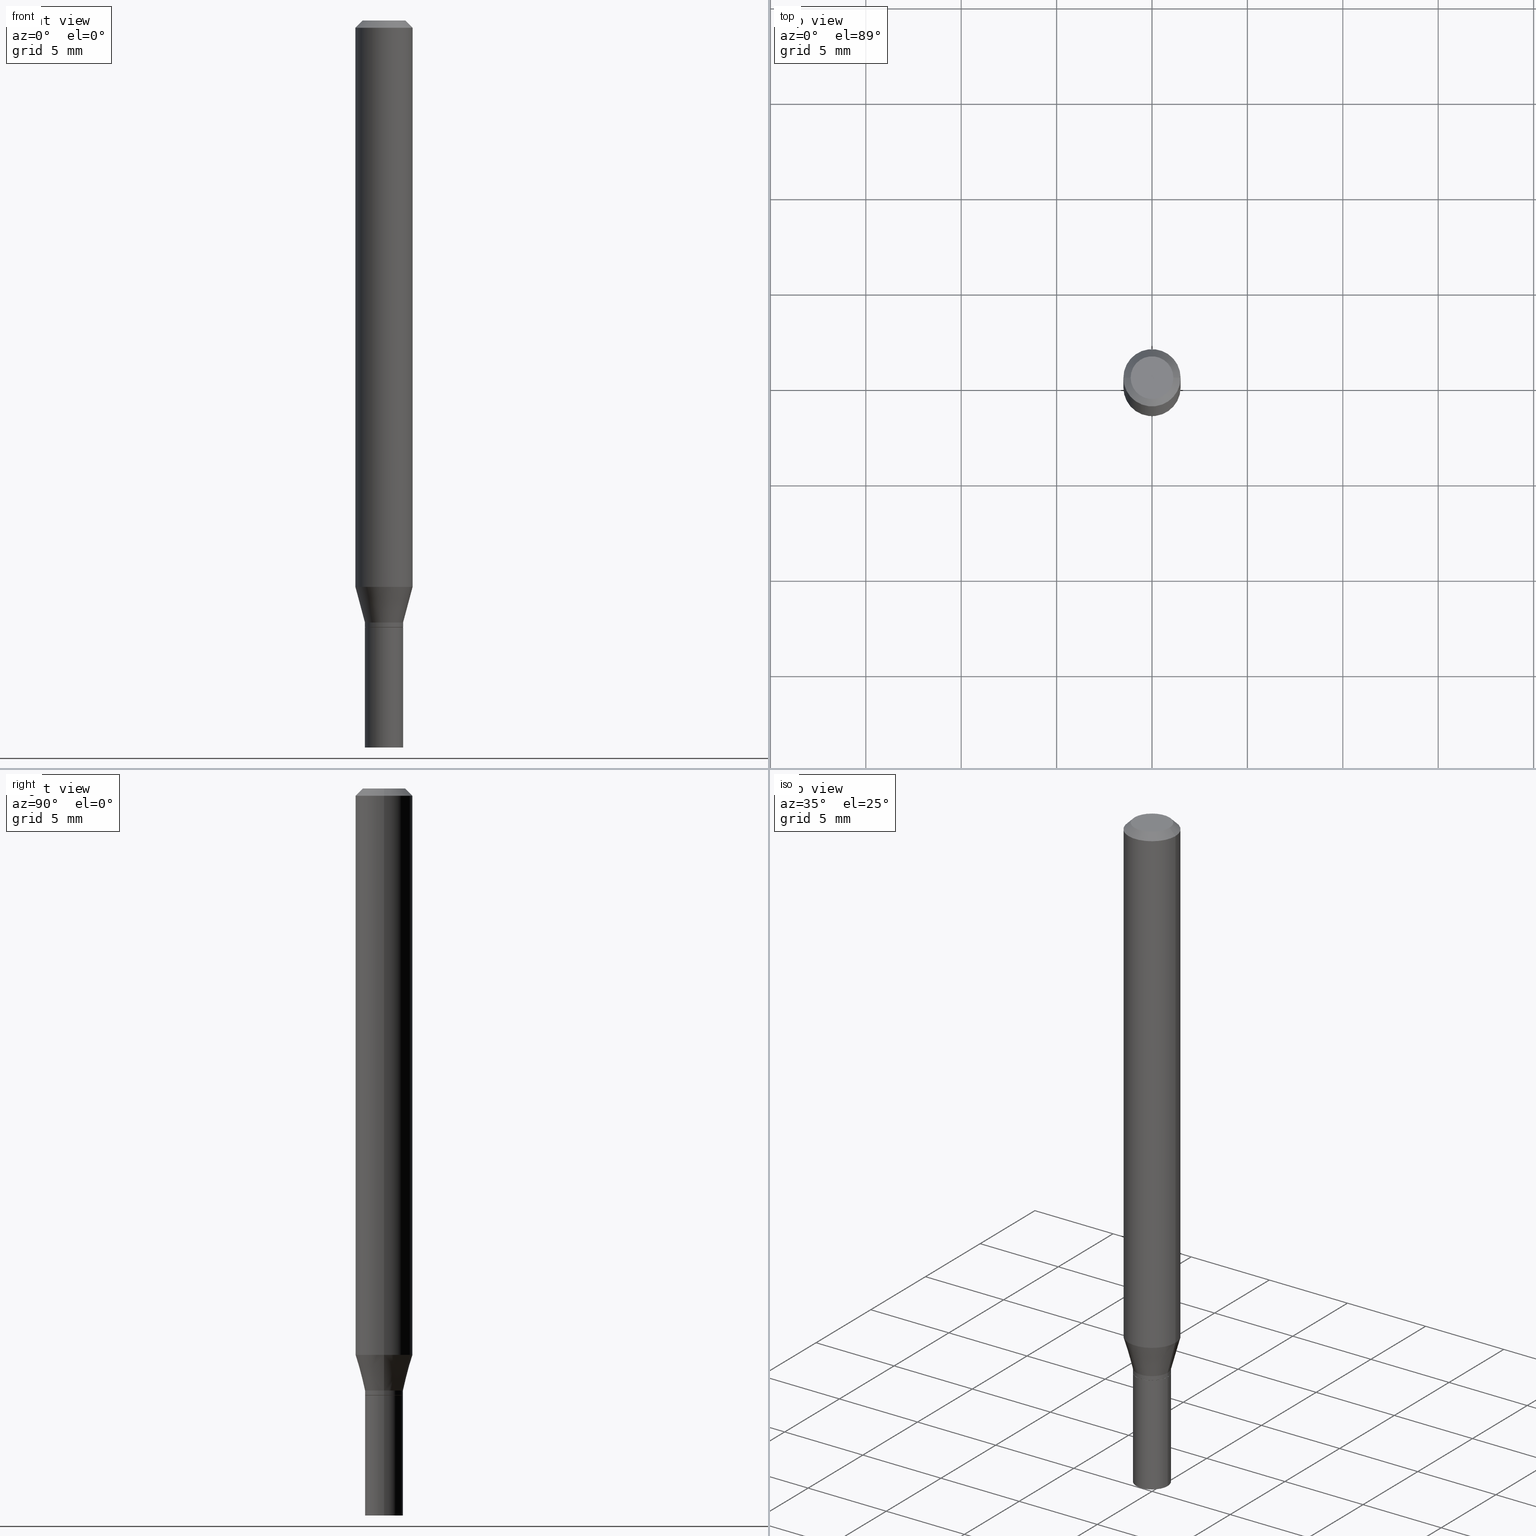
[diagram: canonical four-view strip — front | top / right | iso, engineering-drawing reading convention]
A machine part, canonical four-view strip (front | top / right | iso — engineering-drawing reading convention). The complete STEP part file that produces these views, byte-faithful:
ISO-10303-21;
HEADER;
FILE_DESCRIPTION (( 'STEP AP203' ),
    '1' );
FILE_NAME ('40513.STEP',
    '2024-03-12T19:13:10',
    ( '' ),
    ( '' ),
    'SwSTEP 2.0',
    'SolidWorks 2023',
    '' );
FILE_SCHEMA (( 'CONFIG_CONTROL_DESIGN' ));
ENDSEC;

DATA;
#1 = PERSON_AND_ORGANIZATION_ROLE ( 'creator' ) ;
#2 = EDGE_LOOP ( 'NONE', ( #207, #233, #335, #125 ) ) ;
#3 = COORDINATED_UNIVERSAL_TIME_OFFSET ( 5, 0, .BEHIND. ) ;
#4 = ORIENTED_EDGE ( 'NONE', *, *, #117, .F. ) ;
#5 = APPROVAL_DATE_TIME ( #189, #333 ) ;
#6 = ADVANCED_FACE ( 'NONE', ( #240 ), #300, .T. ) ;
#7 = ORIENTED_EDGE ( 'NONE', *, *, #218, .T. ) ;
#8 = AXIS2_PLACEMENT_3D ( 'NONE', #381, #89, #54 ) ;
#9 = LOCAL_TIME ( 15, 13, 10.00000000000000000, #3 ) ;
#10 = ORIENTED_EDGE ( 'NONE', *, *, #191, .F. ) ;
#11 = VERTEX_POINT ( 'NONE', #271 ) ;
#12 = DIRECTION ( 'NONE',  ( 0.2588190451025215721, 1.565188264969619995E-15, 0.9659258262890679791 ) ) ;
#13 = APPROVAL_ROLE ( '' ) ;
#14 = VECTOR ( 'NONE', #391, 39.37007874015748143 ) ;
#15 =( GEOMETRIC_REPRESENTATION_CONTEXT ( 3 ) GLOBAL_UNCERTAINTY_ASSIGNED_CONTEXT ( ( #57 ) ) GLOBAL_UNIT_ASSIGNED_CONTEXT ( ( #320, #148, #286 ) ) REPRESENTATION_CONTEXT ( 'NONE', 'WORKASPACE' ) );
#16 = CARTESIAN_POINT ( 'NONE',  ( 0.05904999999999999832, -4.492065169680809250E-15, -1.168478599090893244 ) ) ;
#17 = CARTESIAN_POINT ( 'NONE',  ( 3.037272257281939846E-29, -4.336419822843186836E-15, -1.241999999999999993 ) ) ;
#18 = FACE_OUTER_BOUND ( 'NONE', #404, .T. ) ;
#19 = DIRECTION ( 'NONE',  ( 1.000000000000000000, -6.982962677686266711E-15, 0.000000000000000000 ) ) ;
#20 = EDGE_CURVE ( 'NONE', #302, #59, #130, .T. ) ;
#21 = DIRECTION ( 'NONE',  ( 1.000000000000000000, -6.982962677686269077E-15, 0.000000000000000000 ) ) ;
#22 = CARTESIAN_POINT ( 'NONE',  ( -0.03935000000000000303, 2.795985665215994447E-16, -1.935600958015305291E-30 ) ) ;
#23 = AXIS2_PLACEMENT_3D ( 'NONE', #206, #232, #19 ) ;
#24 = DIRECTION ( 'NONE',  ( 0.7071067811865656694, -2.468850131082446387E-15, 0.7071067811865294761 ) ) ;
#25 = DIRECTION ( 'NONE',  ( 1.000000000000000000, -6.982962677686267499E-15, 4.876176775795936353E-29 ) ) ;
#26 = DIRECTION ( 'NONE',  ( -2.445468806185136877E-29, 3.491481338843145188E-15, 1.000000000000000000 ) ) ;
#27 = FACE_OUTER_BOUND ( 'NONE', #403, .T. ) ;
#28 = DIRECTION ( 'NONE',  ( 1.000000000000000000, -6.982962677686266711E-15, 4.876176775795936353E-29 ) ) ;
#29 = CARTESIAN_POINT ( 'NONE',  ( 3.037272257281939846E-29, -4.336419822843186836E-15, -1.241999999999999993 ) ) ;
#30 = LINE ( 'NONE', #281, #163 ) ;
#31 = LOCAL_TIME ( 15, 13, 10.00000000000000000, #463 ) ;
#32 = CARTESIAN_POINT ( 'NONE',  ( 0.03934999999999992670, -4.644368476929151899E-15, -1.251500000000000279 ) ) ;
#33 = CALENDAR_DATE ( 2024, 12, 3 ) ;
#34 = EDGE_CURVE ( 'NONE', #299, #302, #336, .T. ) ;
#35 = DIRECTION ( 'NONE',  ( -2.445468806185136597E-29, 3.491481338843145583E-15, 1.000000000000000000 ) ) ;
#36 = CALENDAR_DATE ( 2024, 12, 3 ) ;
#37 = CARTESIAN_POINT ( 'NONE',  ( 0.000000000000000000, 0.000000000000000000, 0.000000000000000000 ) ) ;
#38 = AXIS2_PLACEMENT_3D ( 'NONE', #69, #176, #106 ) ;
#39 = AXIS2_PLACEMENT_3D ( 'NONE', #449, #94, #202 ) ;
#40 = PERSON_AND_ORGANIZATION ( #443, #315 ) ;
#41 = ORIENTED_EDGE ( 'NONE', *, *, #49, .F. ) ;
#42 = VERTEX_POINT ( 'NONE', #413 ) ;
#43 = ORIENTED_EDGE ( 'NONE', *, *, #298, .T. ) ;
#44 = DESIGN_CONTEXT ( 'detailed design', #123, 'design' ) ;
#45 = ORIENTED_EDGE ( 'NONE', *, *, #219, .T. ) ;
#46 = LOCAL_TIME ( 15, 13, 10.00000000000000000, #397 ) ;
#47 = ORIENTED_EDGE ( 'NONE', *, *, #34, .F. ) ;
#48 = ADVANCED_FACE ( 'NONE', ( #378 ), #314, .F. ) ;
#49 = EDGE_CURVE ( 'NONE', #204, #228, #225, .T. ) ;
#50 = ORIENTED_EDGE ( 'NONE', *, *, #20, .T. ) ;
#51 = CARTESIAN_POINT ( 'NONE',  ( 3.061726945343791391E-29, -4.371334636231619274E-15, -1.252000000000000224 ) ) ;
#52 = CARTESIAN_POINT ( 'NONE',  ( -8.641182519006289553E-45, 1.233731848647591164E-30, 3.533548453838711334E-16 ) ) ;
#53 = AXIS2_PLACEMENT_3D ( 'NONE', #37, #429, #250 ) ;
#54 = DIRECTION ( 'NONE',  ( 1.000000000000000000, -6.982962677686258033E-15, 0.000000000000000000 ) ) ;
#55 = DIRECTION ( 'NONE',  ( -2.445468806185136597E-29, 3.491481338843145583E-15, 1.000000000000000000 ) ) ;
#56 = ADVANCED_FACE ( 'NONE', ( #199 ), #229, .F. ) ;
#57 = UNCERTAINTY_MEASURE_WITH_UNIT (LENGTH_MEASURE( 1.000000000000000082E-05 ), #320, 'distance_accuracy_value', 'NONE');
#58 = DIRECTION ( 'NONE',  ( -2.445468806185136597E-29, 3.491481338843145583E-15, 1.000000000000000000 ) ) ;
#59 = VERTEX_POINT ( 'NONE', #16 ) ;
#60 = CARTESIAN_POINT ( 'NONE',  ( 0.000000000000000000, 0.000000000000000000, 0.000000000000000000 ) ) ;
#61 = AXIS2_PLACEMENT_3D ( 'NONE', #211, #287, #28 ) ;
#62 = VECTOR ( 'NONE', #278, 39.37007874015748143 ) ;
#63 = ORIENTED_EDGE ( 'NONE', *, *, #406, .T. ) ;
#64 = DIRECTION ( 'NONE',  ( 1.000000000000000000, -6.982962677686266711E-15, 0.000000000000000000 ) ) ;
#65 = DIRECTION ( 'NONE',  ( -2.445468806185136597E-29, 3.491481338843145583E-15, 1.000000000000000000 ) ) ;
#66 = PRODUCT_DEFINITION_SHAPE ( 'NONE', 'NONE',  #108 ) ;
#67 = DIRECTION ( 'NONE',  ( 1.000000000000000000, -6.982962677686269077E-15, 0.000000000000000000 ) ) ;
#68 = DIRECTION ( 'NONE',  ( -2.445468806185136877E-29, 3.491481338843145188E-15, 1.000000000000000000 ) ) ;
#69 = CARTESIAN_POINT ( 'NONE',  ( 3.075995059520799729E-16, 0.04404999999999999888, 2.287766971589501637E-17 ) ) ;
#70 = AXIS2_PLACEMENT_3D ( 'NONE', #51, #451, #344 ) ;
#71 = APPROVAL_PERSON_ORGANIZATION ( #40, #369, #436 ) ;
#72 = DIRECTION ( 'NONE',  ( -2.445468806185136597E-29, 3.491481338843145583E-15, 1.000000000000000000 ) ) ;
#73 = PERSON_AND_ORGANIZATION ( #443, #315 ) ;
#74 = ADVANCED_FACE ( 'NONE', ( #18 ), #393, .T. ) ;
#75 = FACE_OUTER_BOUND ( 'NONE', #440, .T. ) ;
#76 = APPROVAL_DATE_TIME ( #364, #369 ) ;
#77 = DIRECTION ( 'NONE',  ( 1.000000000000000000, -6.982962677686266711E-15, 4.876176775795935793E-29 ) ) ;
#78 = PERSON_AND_ORGANIZATION_ROLE ( 'design_supplier' ) ;
#79 = VECTOR ( 'NONE', #152, 39.37007874015748143 ) ;
#80 = CIRCLE ( 'NONE', #308, 0.03885000000000000259 ) ;
#81 = CALENDAR_DATE ( 2024, 12, 3 ) ;
#82 = ORIENTED_EDGE ( 'NONE', *, *, #355, .F. ) ;
#83 = VERTEX_POINT ( 'NONE', #98 ) ;
#84 = ORIENTED_EDGE ( 'NONE', *, *, #298, .F. ) ;
#85 = AXIS2_PLACEMENT_3D ( 'NONE', #387, #65, #67 ) ;
#86 = CIRCLE ( 'NONE', #459, 0.05905000000000001914 ) ;
#87 = EDGE_CURVE ( 'NONE', #375, #204, #236, .T. ) ;
#88 = ORIENTED_EDGE ( 'NONE', *, *, #358, .F. ) ;
#89 = DIRECTION ( 'NONE',  ( -2.445468806185136597E-29, 3.491481338843145583E-15, 1.000000000000000000 ) ) ;
#90 = MANIFOLD_SOLID_BREP ( 'Body-Move/Copy2[2]', #350 ) ;
#91 = CARTESIAN_POINT ( 'NONE',  ( 3.060504210940699150E-29, -4.369588895562197771E-15, -1.251500000000000279 ) ) ;
#92 = CARTESIAN_POINT ( 'NONE',  ( 0.03934999999999993364, -4.611199404210140965E-15, -1.241999999999999993 ) ) ;
#93 = AXIS2_PLACEMENT_3D ( 'NONE', #167, #383, #347 ) ;
#94 = DIRECTION ( 'NONE',  ( 2.438088387897960049E-29, -3.491481338843145188E-15, -1.000000000000000000 ) ) ;
#95 = ADVANCED_FACE ( 'NONE', ( #279 ), #420, .T. ) ;
#96 = CARTESIAN_POINT ( 'NONE',  ( 3.576687321579069994E-29, -5.368277968210015545E-15, -1.500000000000000222 ) ) ;
#97 = CARTESIAN_POINT ( 'NONE',  ( 3.061726945343791391E-29, -4.371334636231619274E-15, -1.252000000000000224 ) ) ;
#98 = CARTESIAN_POINT ( 'NONE',  ( -0.05905000000000002608, -1.646471236356701803E-15, -0.01499999999999999944 ) ) ;
#99 = CC_DESIGN_DATE_AND_TIME_ASSIGNMENT ( #144, #284, ( #108 ) ) ;
#100 = DIRECTION ( 'NONE',  ( 1.000000000000000000, -6.982962677686273021E-15, 0.000000000000000000 ) ) ;
#101 = CARTESIAN_POINT ( 'NONE',  ( 3.668203209277705088E-31, -5.237222008264718399E-17, -0.01499999999999999944 ) ) ;
#102 = CIRCLE ( 'NONE', #282, 0.03934999999999993364 ) ;
#103 = CIRCLE ( 'NONE', #252, 0.03935000000000000303 ) ;
#104 = CYLINDRICAL_SURFACE ( 'NONE', #322, 0.03934999999999993364 ) ;
#105 = EDGE_CURVE ( 'NONE', #224, #444, #30, .T. ) ;
#106 = DIRECTION ( 'NONE',  ( -1.000000000000000000, 6.982962677686265922E-15, -4.876176775795935793E-29 ) ) ;
#107 = DIRECTION ( 'NONE',  ( -1.000000000000000000, 6.982962677686266711E-15, 0.000000000000000000 ) ) ;
#108 = PRODUCT_DEFINITION ( 'UNKNOWN', '', #122, #44 ) ;
#109 = DIRECTION ( 'NONE',  ( 1.000000000000000000, -6.982962677686265922E-15, 4.819687581474398999E-29 ) ) ;
#110 = ADVANCED_FACE ( 'NONE', ( #422 ), #353, .T. ) ;
#111 = CARTESIAN_POINT ( 'NONE',  ( -0.05905000000000001914, 3.599717260347269535E-16, -0.01499999999999999944 ) ) ;
#112 = CLOSED_SHELL ( 'NONE', ( #110, #48, #95, #245 ) ) ;
#113 = AXIS2_PLACEMENT_3D ( 'NONE', #447, #310, #416 ) ;
#114 = DIRECTION ( 'NONE',  ( 1.000000000000000000, -6.982962677686269077E-15, 0.000000000000000000 ) ) ;
#115 = PERSON_AND_ORGANIZATION ( #443, #315 ) ;
#116 = PERSON_AND_ORGANIZATION ( #443, #315 ) ;
#117 = EDGE_CURVE ( 'NONE', #228, #299, #460, .T. ) ;
#118 = EDGE_LOOP ( 'NONE', ( #88, #309, #437, #84 ) ) ;
#119 = ADVANCED_BREP_SHAPE_REPRESENTATION ( '40513', ( #401, #90, #53 ), #15 ) ;
#120 = AXIS2_PLACEMENT_3D ( 'NONE', #319, #458, #324 ) ;
#121 = VERTEX_POINT ( 'NONE', #395 ) ;
#122 = PRODUCT_DEFINITION_FORMATION_WITH_SPECIFIED_SOURCE ( 'ANY', '', #147, .NOT_KNOWN. ) ;
#123 = APPLICATION_CONTEXT ( 'configuration controlled 3d designs of mechanical parts and assemblies' ) ;
#124 = ORIENTED_EDGE ( 'NONE', *, *, #274, .T. ) ;
#125 = ORIENTED_EDGE ( 'NONE', *, *, #428, .F. ) ;
#126 = ADVANCED_FACE ( 'NONE', ( #209 ), #145, .T. ) ;
#127 = ORIENTED_EDGE ( 'NONE', *, *, #34, .T. ) ;
#128 = CONICAL_SURFACE ( 'NONE', #423, 0.05905000000000001914, 0.7853981633974372878 ) ;
#129 = AXIS2_PLACEMENT_3D ( 'NONE', #60, #352, #25 ) ;
#130 = LINE ( 'NONE', #92, #275 ) ;
#131 = CARTESIAN_POINT ( 'NONE',  ( -0.03885000000000000259, -4.092639556214709577E-15, -1.252000000000000224 ) ) ;
#132 = ORIENTED_EDGE ( 'NONE', *, *, #218, .F. ) ;
#133 = LINE ( 'NONE', #200, #294 ) ;
#134 = VECTOR ( 'NONE', #24, 39.37007874015748143 ) ;
#135 = CONICAL_SURFACE ( 'NONE', #424, 0.03934999999999993364, 0.2617993877991502960 ) ;
#136 = DIRECTION ( 'NONE',  ( 1.000000000000000000, -6.982962677686265922E-15, 4.819687581474398999E-29 ) ) ;
#137 = CIRCLE ( 'NONE', #351, 0.03935000000000000303 ) ;
#138 = ORIENTED_EDGE ( 'NONE', *, *, #418, .T. ) ;
#139 = DIRECTION ( 'NONE',  ( 1.000000000000000000, -6.982962677686258033E-15, 0.000000000000000000 ) ) ;
#140 = CARTESIAN_POINT ( 'NONE',  ( 3.668203209277705088E-31, -5.237222008264718399E-17, -0.01499999999999999944 ) ) ;
#141 = CC_DESIGN_PERSON_AND_ORGANIZATION_ASSIGNMENT ( #116, #180, ( #147 ) ) ;
#142 = DIRECTION ( 'NONE',  ( -0.7071067811865656694, 7.493145998870420424E-15, 0.7071067811865294761 ) ) ;
#143 = FACE_OUTER_BOUND ( 'NONE', #311, .T. ) ;
#144 = DATE_AND_TIME ( #398, #323 ) ;
#145 = CONICAL_SURFACE ( 'NONE', #293, 0.03885000000000000259, 0.7853981633974739252 ) ;
#146 = CARTESIAN_POINT ( 'NONE',  ( 0.03935000000000000303, -4.646114217598574191E-15, -1.252000000000000224 ) ) ;
#147 = PRODUCT ( '40513', '40513', '', ( #295 ) ) ;
#148 =( NAMED_UNIT ( * ) PLANE_ANGLE_UNIT ( ) SI_UNIT ( $, .RADIAN. ) );
#149 = CARTESIAN_POINT ( 'NONE',  ( 3.668203209277705088E-31, -5.237222008264718399E-17, -0.01499999999999999944 ) ) ;
#150 = ADVANCED_FACE ( 'NONE', ( #321 ), #247, .T. ) ;
#151 = CARTESIAN_POINT ( 'NONE',  ( 0.05905000000000001914, -4.647161662000214077E-16, -0.01499999999999999944 ) ) ;
#152 = DIRECTION ( 'NONE',  ( -0.7071067811865396902, 2.468850131082174625E-15, -0.7071067811865553443 ) ) ;
#153 = CARTESIAN_POINT ( 'NONE',  ( -8.641182519006289553E-45, 1.233731848647591164E-30, 3.533548453838711334E-16 ) ) ;
#154 = CIRCLE ( 'NONE', #120, 0.03935000000000000303 ) ;
#155 = CIRCLE ( 'NONE', #170, 0.04404999999999999888 ) ;
#156 = COORDINATED_UNIVERSAL_TIME_OFFSET ( 5, 0, .BEHIND. ) ;
#157 = VERTEX_POINT ( 'NONE', #146 ) ;
#158 = APPROVAL_STATUS ( 'not_yet_approved' ) ;
#159 = ORIENTED_EDGE ( 'NONE', *, *, #371, .T. ) ;
#160 = ORIENTED_EDGE ( 'NONE', *, *, #355, .T. ) ;
#161 = ORIENTED_EDGE ( 'NONE', *, *, #254, .F. ) ;
#162 = CARTESIAN_POINT ( 'NONE',  ( 3.037272257281939846E-29, -4.336419822843186836E-15, -1.241999999999999993 ) ) ;
#163 = VECTOR ( 'NONE', #244, 39.37007874015748143 ) ;
#164 = VECTOR ( 'NONE', #68, 39.37007874015748143 ) ;
#165 = EDGE_CURVE ( 'NONE', #157, #439, #306, .T. ) ;
#166 = CYLINDRICAL_SURFACE ( 'NONE', #129, 0.05905000000000000526 ) ;
#167 = CARTESIAN_POINT ( 'NONE',  ( 3.061726945343791391E-29, -4.371334636231619274E-15, -1.252000000000000224 ) ) ;
#168 = DIRECTION ( 'NONE',  ( -2.445468806185136597E-29, 3.491481338843145583E-15, 1.000000000000000000 ) ) ;
#169 = DIRECTION ( 'NONE',  ( -1.000000000000000000, 6.982962677686266711E-15, 0.000000000000000000 ) ) ;
#170 = AXIS2_PLACEMENT_3D ( 'NONE', #52, #313, #136 ) ;
#171 = PLANE ( 'NONE',  #39 ) ;
#172 = DIMENSIONAL_EXPONENTS ( 1.000000000000000000, 0.000000000000000000, 0.000000000000000000, 0.000000000000000000, 0.000000000000000000, 0.000000000000000000, 0.000000000000000000 ) ;
#173 = ORIENTED_EDGE ( 'NONE', *, *, #406, .F. ) ;
#174 = ADVANCED_FACE ( 'NONE', ( #430 ), #285, .F. ) ;
#175 = CARTESIAN_POINT ( 'NONE',  ( -0.03934999999999993364, -3.858483497209341928E-15, -1.241999999999999993 ) ) ;
#176 = DIRECTION ( 'NONE',  ( 2.438088387897960049E-29, -3.491481338843145188E-15, -1.000000000000000000 ) ) ;
#177 = CARTESIAN_POINT ( 'NONE',  ( -0.03934999999999993364, 2.795985665215989516E-16, -1.935600958015302139E-30 ) ) ;
#178 = APPLICATION_PROTOCOL_DEFINITION ( 'international standard', 'config_control_design', 1994, #192 ) ;
#179 = CARTESIAN_POINT ( 'NONE',  ( 0.000000000000000000, 0.000000000000000000, 0.000000000000000000 ) ) ;
#180 = PERSON_AND_ORGANIZATION_ROLE ( 'design_owner' ) ;
#181 = DIRECTION ( 'NONE',  ( 2.445468806185136597E-29, -3.491481338843145583E-15, -1.000000000000000000 ) ) ;
#182 = DIRECTION ( 'NONE',  ( 1.000000000000000000, -6.982962677686273021E-15, 0.000000000000000000 ) ) ;
#183 = SHAPE_DEFINITION_REPRESENTATION ( #66, #119 ) ;
#184 = DATE_AND_TIME ( #33, #231 ) ;
#185 = AXIS2_PLACEMENT_3D ( 'NONE', #357, #35, #359 ) ;
#186 = AXIS2_PLACEMENT_3D ( 'NONE', #210, #396, #182 ) ;
#187 = ORIENTED_EDGE ( 'NONE', *, *, #87, .T. ) ;
#188 = EDGE_LOOP ( 'NONE', ( #260, #263, #45, #307 ) ) ;
#189 = DATE_AND_TIME ( #81, #9 ) ;
#190 = ORIENTED_EDGE ( 'NONE', *, *, #371, .F. ) ;
#191 = EDGE_CURVE ( 'NONE', #42, #11, #154, .T. ) ;
#192 = APPLICATION_CONTEXT ( 'configuration controlled 3d designs of mechanical parts and assemblies' ) ;
#193 = SECURITY_CLASSIFICATION ( '', '', #296 ) ;
#194 = ADVANCED_FACE ( 'NONE', ( #143 ), #128, .T. ) ;
#195 = ORIENTED_EDGE ( 'NONE', *, *, #340, .T. ) ;
#196 = ORIENTED_EDGE ( 'NONE', *, *, #49, .T. ) ;
#197 = CIRCLE ( 'NONE', #186, 0.05904999999999999832 ) ;
#198 = DIRECTION ( 'NONE',  ( -2.445468806185136597E-29, 3.491481338843145583E-15, 1.000000000000000000 ) ) ;
#199 = FACE_OUTER_BOUND ( 'NONE', #304, .T. ) ;
#200 = CARTESIAN_POINT ( 'NONE',  ( 0.03934999999999993364, -2.747795813669541281E-16, 1.918775561275697570E-30 ) ) ;
#201 = EDGE_LOOP ( 'NONE', ( #334, #43 ) ) ;
#202 = DIRECTION ( 'NONE',  ( -1.000000000000000000, 6.982962677686265922E-15, -4.876176775795935793E-29 ) ) ;
#203 = EDGE_CURVE ( 'NONE', #11, #157, #249, .T. ) ;
#204 = VERTEX_POINT ( 'NONE', #32 ) ;
#205 = CIRCLE ( 'NONE', #113, 0.03885000000000000259 ) ;
#206 = CARTESIAN_POINT ( 'NONE',  ( 3.668203209277705088E-31, -5.237222008264718399E-17, -0.01499999999999999944 ) ) ;
#207 = ORIENTED_EDGE ( 'NONE', *, *, #453, .T. ) ;
#208 = DIRECTION ( 'NONE',  ( 1.000000000000000000, -6.982962677686266711E-15, 4.876176775795935793E-29 ) ) ;
#209 = FACE_OUTER_BOUND ( 'NONE', #215, .T. ) ;
#210 = CARTESIAN_POINT ( 'NONE',  ( 2.857477964771687293E-29, -4.079721223563434330E-15, -1.168478599090893244 ) ) ;
#211 = CARTESIAN_POINT ( 'NONE',  ( 0.000000000000000000, 0.000000000000000000, 0.000000000000000000 ) ) ;
#212 = AXIS2_PLACEMENT_3D ( 'NONE', #140, #446, #169 ) ;
#213 = APPROVAL_PERSON_ORGANIZATION ( #425, #333, #13 ) ;
#214 = CARTESIAN_POINT ( 'NONE',  ( 0.03935000000000000303, -2.747795813669546211E-16, 1.918775561275701074E-30 ) ) ;
#215 = EDGE_LOOP ( 'NONE', ( #303, #63, #41, #454 ) ) ;
#216 = CARTESIAN_POINT ( 'NONE',  ( 3.061726945343791391E-29, -4.371334636231619274E-15, -1.252000000000000224 ) ) ;
#217 = APPROVAL_STATUS ( 'not_yet_approved' ) ;
#218 = EDGE_CURVE ( 'NONE', #302, #299, #102, .T. ) ;
#219 = EDGE_CURVE ( 'NONE', #121, #83, #431, .T. ) ;
#220 = CYLINDRICAL_SURFACE ( 'NONE', #337, 0.03934999999999993364 ) ;
#221 = AXIS2_PLACEMENT_3D ( 'NONE', #17, #168, #270 ) ;
#222 = ORIENTED_EDGE ( 'NONE', *, *, #345, .F. ) ;
#223 = CC_DESIGN_PERSON_AND_ORGANIZATION_ASSIGNMENT ( #73, #328, ( #193 ) ) ;
#224 = VERTEX_POINT ( 'NONE', #290 ) ;
#225 = CIRCLE ( 'NONE', #8, 0.03934999999999992670 ) ;
#226 = CIRCLE ( 'NONE', #23, 0.05905000000000001914 ) ;
#227 = ORIENTED_EDGE ( 'NONE', *, *, #219, .F. ) ;
#228 = VERTEX_POINT ( 'NONE', #253 ) ;
#229 = PLANE ( 'NONE',  #70 ) ;
#230 = CARTESIAN_POINT ( 'NONE',  ( 3.061726945343791391E-29, -4.371334636231619274E-15, -1.252000000000000224 ) ) ;
#231 = LOCAL_TIME ( 15, 13, 10.00000000000000000, #156 ) ;
#232 = DIRECTION ( 'NONE',  ( -2.445468806185136597E-29, 3.491481338843145583E-15, 1.000000000000000000 ) ) ;
#233 = ORIENTED_EDGE ( 'NONE', *, *, #254, .T. ) ;
#234 = ADVANCED_FACE ( 'NONE', ( #456 ), #104, .T. ) ;
#235 = DIRECTION ( 'NONE',  ( -2.445468806185136597E-29, 3.491481338843145583E-15, 1.000000000000000000 ) ) ;
#236 = LINE ( 'NONE', #349, #134 ) ;
#237 = EDGE_CURVE ( 'NONE', #409, #59, #261, .T. ) ;
#238 = ORIENTED_EDGE ( 'NONE', *, *, #340, .F. ) ;
#239 = CARTESIAN_POINT ( 'NONE',  ( 3.668203209277704895E-29, -5.237222008264718177E-15, -1.500000000000000222 ) ) ;
#240 = FACE_OUTER_BOUND ( 'NONE', #188, .T. ) ;
#241 = VECTOR ( 'NONE', #142, 39.37007874015748143 ) ;
#242 = FACE_OUTER_BOUND ( 'NONE', #201, .T. ) ;
#243 = CC_DESIGN_DATE_AND_TIME_ASSIGNMENT ( #392, #362, ( #193 ) ) ;
#244 = DIRECTION ( 'NONE',  ( 0.7071067811865396902, -7.319954787623229224E-15, -0.7071067811865553443 ) ) ;
#245 = ADVANCED_FACE ( 'NONE', ( #242 ), #171, .F. ) ;
#246 = DIRECTION ( 'NONE',  ( -2.445468806185136597E-29, 3.491481338843145583E-15, 1.000000000000000000 ) ) ;
#247 = CYLINDRICAL_SURFACE ( 'NONE', #185, 0.05905000000000000526 ) ;
#248 = CARTESIAN_POINT ( 'NONE',  ( 0.000000000000000000, 0.000000000000000000, 0.000000000000000000 ) ) ;
#249 = LINE ( 'NONE', #214, #14 ) ;
#250 = DIRECTION ( 'NONE',  ( 1.000000000000000000, 0.000000000000000000, 0.000000000000000000 ) ) ;
#251 = AXIS2_PLACEMENT_3D ( 'NONE', #179, #427, #389 ) ;
#252 = AXIS2_PLACEMENT_3D ( 'NONE', #239, #198, #385 ) ;
#253 = CARTESIAN_POINT ( 'NONE',  ( -0.03934999999999992670, -4.089990329040599164E-15, -1.251500000000000279 ) ) ;
#254 = EDGE_CURVE ( 'NONE', #409, #83, #386, .T. ) ;
#255 = CARTESIAN_POINT ( 'NONE',  ( -0.03935000000000000303, -4.524679755726570119E-15, -1.252000000000000224 ) ) ;
#256 = PERSON_AND_ORGANIZATION ( #443, #315 ) ;
#257 = COORDINATED_UNIVERSAL_TIME_OFFSET ( 5, 0, .BEHIND. ) ;
#258 = CALENDAR_DATE ( 2024, 12, 3 ) ;
#259 = EDGE_LOOP ( 'NONE', ( #159, #262, #435, #407 ) ) ;
#260 = ORIENTED_EDGE ( 'NONE', *, *, #105, .F. ) ;
#261 = CIRCLE ( 'NONE', #432, 0.05904999999999999832 ) ;
#262 = ORIENTED_EDGE ( 'NONE', *, *, #358, .T. ) ;
#263 = ORIENTED_EDGE ( 'NONE', *, *, #418, .F. ) ;
#264 = VERTEX_POINT ( 'NONE', #131 ) ;
#265 = AXIS2_PLACEMENT_3D ( 'NONE', #162, #268, #21 ) ;
#266 = AXIS2_PLACEMENT_3D ( 'NONE', #91, #58, #139 ) ;
#267 = EDGE_LOOP ( 'NONE', ( #161, #273, #448, #339 ) ) ;
#268 = DIRECTION ( 'NONE',  ( -2.445468806185136597E-29, 3.491481338843145583E-15, 1.000000000000000000 ) ) ;
#269 = EDGE_CURVE ( 'NONE', #83, #444, #226, .T. ) ;
#270 = DIRECTION ( 'NONE',  ( 1.000000000000000000, -6.982962677686269077E-15, 0.000000000000000000 ) ) ;
#271 = CARTESIAN_POINT ( 'NONE',  ( 0.03935000000000000303, -5.512001589631673094E-15, -1.500000000000000222 ) ) ;
#272 = DIRECTION ( 'NONE',  ( 1.000000000000000000, -6.982962677686269077E-15, 0.000000000000000000 ) ) ;
#273 = ORIENTED_EDGE ( 'NONE', *, *, #237, .T. ) ;
#274 = EDGE_CURVE ( 'NONE', #204, #302, #133, .T. ) ;
#275 = VECTOR ( 'NONE', #12, 39.37007874015748143 ) ;
#276 = ORIENTED_EDGE ( 'NONE', *, *, #329, .F. ) ;
#277 = CARTESIAN_POINT ( 'NONE',  ( -0.03934999999999993364, -4.056821256321588230E-15, -1.241999999999999993 ) ) ;
#278 = DIRECTION ( 'NONE',  ( -2.445468806185136877E-29, 3.491481338843145188E-15, 1.000000000000000000 ) ) ;
#279 = FACE_OUTER_BOUND ( 'NONE', #118, .T. ) ;
#280 = FACE_OUTER_BOUND ( 'NONE', #267, .T. ) ;
#281 = CARTESIAN_POINT ( 'NONE',  ( 0.05905000000000001914, -4.574846268510562433E-16, -0.01499999999999999944 ) ) ;
#282 = AXIS2_PLACEMENT_3D ( 'NONE', #327, #356, #462 ) ;
#283 = CC_DESIGN_APPROVAL ( #405, ( #108 ) ) ;
#284 = DATE_TIME_ROLE ( 'creation_date' ) ;
#285 = PLANE ( 'NONE',  #38 ) ;
#286 =( NAMED_UNIT ( * ) SI_UNIT ( $, .STERADIAN. ) SOLID_ANGLE_UNIT ( ) );
#287 = DIRECTION ( 'NONE',  ( -2.445468806185136597E-29, 3.491481338843145583E-15, 1.000000000000000000 ) ) ;
#288 = PRODUCT_RELATED_PRODUCT_CATEGORY ( 'detail', '', ( #147 ) ) ;
#289 = DIRECTION ( 'NONE',  ( -2.445468806185136597E-29, 3.491481338843145583E-15, 1.000000000000000000 ) ) ;
#290 = CARTESIAN_POINT ( 'NONE',  ( 0.04404999999999999888, -3.798447818264455642E-16, 3.533548453838735986E-16 ) ) ;
#291 = EDGE_CURVE ( 'NONE', #444, #83, #86, .T. ) ;
#292 = CARTESIAN_POINT ( 'NONE',  ( 0.05905000000000000526, -4.123439461173741313E-16, 2.879382386107500571E-30 ) ) ;
#293 = AXIS2_PLACEMENT_3D ( 'NONE', #216, #72, #361 ) ;
#294 = VECTOR ( 'NONE', #312, 39.37007874015748143 ) ;
#295 = MECHANICAL_CONTEXT ( 'NONE', #192, 'mechanical' ) ;
#296 = SECURITY_CLASSIFICATION_LEVEL ( 'unclassified' ) ;
#297 = ORIENTED_EDGE ( 'NONE', *, *, #291, .T. ) ;
#298 = EDGE_CURVE ( 'NONE', #439, #157, #137, .T. ) ;
#299 = VERTEX_POINT ( 'NONE', #175 ) ;
#300 = CONICAL_SURFACE ( 'NONE', #212, 0.05905000000000001914, 0.7853981633974372878 ) ;
#301 = CC_DESIGN_SECURITY_CLASSIFICATION ( #193, ( #122 ) ) ;
#302 = VERTEX_POINT ( 'NONE', #380 ) ;
#303 = ORIENTED_EDGE ( 'NONE', *, *, #345, .T. ) ;
#304 = EDGE_LOOP ( 'NONE', ( #222, #238 ) ) ;
#305 = ADVANCED_FACE ( 'NONE', ( #27 ), #372, .T. ) ;
#306 = CIRCLE ( 'NONE', #85, 0.03935000000000000303 ) ;
#307 = ORIENTED_EDGE ( 'NONE', *, *, #269, .T. ) ;
#308 = AXIS2_PLACEMENT_3D ( 'NONE', #97, #382, #348 ) ;
#309 = ORIENTED_EDGE ( 'NONE', *, *, #191, .T. ) ;
#310 = DIRECTION ( 'NONE',  ( -2.445468806185136597E-29, 3.491481338843145583E-15, 1.000000000000000000 ) ) ;
#311 = EDGE_LOOP ( 'NONE', ( #332, #367, #297, #227 ) ) ;
#312 = DIRECTION ( 'NONE',  ( -2.445468806185136877E-29, 3.491481338843145188E-15, 1.000000000000000000 ) ) ;
#313 = DIRECTION ( 'NONE',  ( -2.445468806185136597E-29, 3.491481338843145583E-15, 1.000000000000000000 ) ) ;
#314 = PLANE ( 'NONE',  #442 ) ;
#315 = ORGANIZATION ( 'UNSPECIFIED', 'UNSPECIFIED', '' ) ;
#316 = CARTESIAN_POINT ( 'NONE',  ( 0.000000000000000000, 0.000000000000000000, 0.000000000000000000 ) ) ;
#317 = EDGE_LOOP ( 'NONE', ( #196, #341, #132, #415 ) ) ;
#318 = LINE ( 'NONE', #455, #241 ) ;
#319 = CARTESIAN_POINT ( 'NONE',  ( 3.668203209277704895E-29, -5.237222008264718177E-15, -1.500000000000000222 ) ) ;
#320 =( CONVERSION_BASED_UNIT ( 'INCH', #434 ) LENGTH_UNIT ( ) NAMED_UNIT ( #172 ) );
#321 = FACE_OUTER_BOUND ( 'NONE', #2, .T. ) ;
#322 = AXIS2_PLACEMENT_3D ( 'NONE', #316, #414, #208 ) ;
#323 = LOCAL_TIME ( 15, 13, 10.00000000000000000, #257 ) ;
#324 = DIRECTION ( 'NONE',  ( 1.000000000000000000, -6.982962677686269077E-15, 0.000000000000000000 ) ) ;
#325 = PERSON_AND_ORGANIZATION ( #443, #315 ) ;
#326 = EDGE_CURVE ( 'NONE', #224, #121, #155, .T. ) ;
#327 = CARTESIAN_POINT ( 'NONE',  ( 3.037272257281939846E-29, -4.336419822843186836E-15, -1.241999999999999993 ) ) ;
#328 = PERSON_AND_ORGANIZATION_ROLE ( 'classification_officer' ) ;
#329 = EDGE_CURVE ( 'NONE', #299, #409, #412, .T. ) ;
#330 =( LENGTH_UNIT ( ) NAMED_UNIT ( * ) SI_UNIT ( $, .METRE. ) );
#331 = PERSON_AND_ORGANIZATION ( #443, #315 ) ;
#332 = ORIENTED_EDGE ( 'NONE', *, *, #326, .F. ) ;
#333 = APPROVAL ( #158, 'UNSPECIFIED' ) ;
#334 = ORIENTED_EDGE ( 'NONE', *, *, #165, .T. ) ;
#335 = ORIENTED_EDGE ( 'NONE', *, *, #291, .F. ) ;
#336 = CIRCLE ( 'NONE', #265, 0.03934999999999993364 ) ;
#337 = AXIS2_PLACEMENT_3D ( 'NONE', #248, #433, #77 ) ;
#338 = CC_DESIGN_APPROVAL ( #369, ( #193 ) ) ;
#339 = ORIENTED_EDGE ( 'NONE', *, *, #269, .F. ) ;
#340 = EDGE_CURVE ( 'NONE', #264, #375, #205, .T. ) ;
#341 = ORIENTED_EDGE ( 'NONE', *, *, #117, .T. ) ;
#342 = DIRECTION ( 'NONE',  ( 1.000000000000000000, -6.982962677686265922E-15, 4.876176775795935793E-29 ) ) ;
#343 = CARTESIAN_POINT ( 'NONE',  ( 0.03885000000000000259, -4.642622736259730395E-15, -1.252000000000000224 ) ) ;
#344 = DIRECTION ( 'NONE',  ( 1.000000000000000000, -6.982962677686265922E-15, 4.876176775795935793E-29 ) ) ;
#345 = EDGE_CURVE ( 'NONE', #375, #264, #80, .T. ) ;
#346 = CARTESIAN_POINT ( 'NONE',  ( -0.05905000000000000526, 4.195754854663391971E-16, -2.904631170795522242E-30 ) ) ;
#347 = DIRECTION ( 'NONE',  ( 1.000000000000000000, -6.982962677686256455E-15, 0.000000000000000000 ) ) ;
#348 = DIRECTION ( 'NONE',  ( 1.000000000000000000, -6.982962677686256455E-15, 0.000000000000000000 ) ) ;
#349 = CARTESIAN_POINT ( 'NONE',  ( 0.03885000000000000259, -4.642622736259730395E-15, -1.252000000000000224 ) ) ;
#350 = CLOSED_SHELL ( 'NONE', ( #234, #126, #194, #150, #305, #465, #377, #6, #174, #56, #74, #438 ) ) ;
#351 = AXIS2_PLACEMENT_3D ( 'NONE', #230, #235, #272 ) ;
#352 = DIRECTION ( 'NONE',  ( -2.445468806185136597E-29, 3.491481338843145583E-15, 1.000000000000000000 ) ) ;
#353 = CYLINDRICAL_SURFACE ( 'NONE', #61, 0.03935000000000000303 ) ;
#354 = DIRECTION ( 'NONE',  ( -0.2588190451025215721, 5.211531920934551831E-15, 0.9659258262890679791 ) ) ;
#355 = EDGE_CURVE ( 'NONE', #228, #204, #408, .T. ) ;
#356 = DIRECTION ( 'NONE',  ( -2.445468806185136597E-29, 3.491481338843145583E-15, 1.000000000000000000 ) ) ;
#357 = CARTESIAN_POINT ( 'NONE',  ( 0.000000000000000000, 0.000000000000000000, 0.000000000000000000 ) ) ;
#358 = EDGE_CURVE ( 'NONE', #42, #439, #376, .T. ) ;
#359 = DIRECTION ( 'NONE',  ( 1.000000000000000000, -6.982962677686267499E-15, 4.876176775795936353E-29 ) ) ;
#360 = APPROVAL_ROLE ( '' ) ;
#361 = DIRECTION ( 'NONE',  ( 1.000000000000000000, -6.982962677686256455E-15, 0.000000000000000000 ) ) ;
#362 = DATE_TIME_ROLE ( 'classification_date' ) ;
#363 = APPROVAL_STATUS ( 'not_yet_approved' ) ;
#364 = DATE_AND_TIME ( #258, #31 ) ;
#365 = VECTOR ( 'NONE', #26, 39.37007874015748143 ) ;
#366 = CIRCLE ( 'NONE', #400, 0.04404999999999999888 ) ;
#367 = ORIENTED_EDGE ( 'NONE', *, *, #105, .T. ) ;
#368 = ORIENTED_EDGE ( 'NONE', *, *, #329, .T. ) ;
#369 = APPROVAL ( #217, 'UNSPECIFIED' ) ;
#370 = EDGE_LOOP ( 'NONE', ( #138, #373 ) ) ;
#371 = EDGE_CURVE ( 'NONE', #11, #42, #103, .T. ) ;
#372 = CONICAL_SURFACE ( 'NONE', #221, 0.03934999999999993364, 0.2617993877991502960 ) ;
#373 = ORIENTED_EDGE ( 'NONE', *, *, #326, .T. ) ;
#374 = ORIENTED_EDGE ( 'NONE', *, *, #20, .F. ) ;
#375 = VERTEX_POINT ( 'NONE', #343 ) ;
#376 = LINE ( 'NONE', #22, #62 ) ;
#377 = ADVANCED_FACE ( 'NONE', ( #280 ), #166, .T. ) ;
#378 = FACE_OUTER_BOUND ( 'NONE', #417, .T. ) ;
#379 = CC_DESIGN_APPROVAL ( #333, ( #122 ) ) ;
#380 = CARTESIAN_POINT ( 'NONE',  ( 0.03934999999999993364, -4.611199404210140965E-15, -1.241999999999999993 ) ) ;
#381 = CARTESIAN_POINT ( 'NONE',  ( 3.060504210940699150E-29, -4.369588895562197771E-15, -1.251500000000000279 ) ) ;
#382 = DIRECTION ( 'NONE',  ( -2.445468806185136597E-29, 3.491481338843145583E-15, 1.000000000000000000 ) ) ;
#383 = DIRECTION ( 'NONE',  ( -2.445468806185136597E-29, 3.491481338843145583E-15, 1.000000000000000000 ) ) ;
#384 = EDGE_LOOP ( 'NONE', ( #276, #127, #50, #399 ) ) ;
#385 = DIRECTION ( 'NONE',  ( 1.000000000000000000, -6.982962677686269077E-15, 0.000000000000000000 ) ) ;
#386 = LINE ( 'NONE', #346, #466 ) ;
#387 = CARTESIAN_POINT ( 'NONE',  ( 3.061726945343791391E-29, -4.371334636231619274E-15, -1.252000000000000224 ) ) ;
#388 = APPROVAL_DATE_TIME ( #184, #405 ) ;
#389 = DIRECTION ( 'NONE',  ( 1.000000000000000000, -6.982962677686266711E-15, 4.876176775795936353E-29 ) ) ;
#390 = CC_DESIGN_PERSON_AND_ORGANIZATION_ASSIGNMENT ( #115, #402, ( #122 ) ) ;
#391 = DIRECTION ( 'NONE',  ( -2.445468806185136877E-29, 3.491481338843145188E-15, 1.000000000000000000 ) ) ;
#392 = DATE_AND_TIME ( #36, #46 ) ;
#393 = CONICAL_SURFACE ( 'NONE', #93, 0.03885000000000000259, 0.7853981633974739252 ) ;
#394 = VECTOR ( 'NONE', #354, 39.37007874015748143 ) ;
#395 = CARTESIAN_POINT ( 'NONE',  ( -0.04404999999999999888, 3.337856159934041534E-16, 3.533548453838689148E-16 ) ) ;
#396 = DIRECTION ( 'NONE',  ( -2.445468806185136597E-29, 3.491481338843145583E-15, 1.000000000000000000 ) ) ;
#397 = COORDINATED_UNIVERSAL_TIME_OFFSET ( 5, 0, .BEHIND. ) ;
#398 = CALENDAR_DATE ( 2024, 12, 3 ) ;
#399 = ORIENTED_EDGE ( 'NONE', *, *, #237, .F. ) ;
#400 = AXIS2_PLACEMENT_3D ( 'NONE', #153, #289, #109 ) ;
#401 = MANIFOLD_SOLID_BREP ( 'Body-Move/Copy2[1]', #112 ) ;
#402 = PERSON_AND_ORGANIZATION_ROLE ( 'creator' ) ;
#403 = EDGE_LOOP ( 'NONE', ( #7, #368, #441, #374 ) ) ;
#404 = EDGE_LOOP ( 'NONE', ( #173, #195, #187, #82 ) ) ;
#405 = APPROVAL ( #363, 'UNSPECIFIED' ) ;
#406 = EDGE_CURVE ( 'NONE', #264, #228, #318, .T. ) ;
#407 = ORIENTED_EDGE ( 'NONE', *, *, #203, .F. ) ;
#408 = CIRCLE ( 'NONE', #266, 0.03934999999999992670 ) ;
#409 = VERTEX_POINT ( 'NONE', #421 ) ;
#410 = CC_DESIGN_PERSON_AND_ORGANIZATION_ASSIGNMENT ( #331, #1, ( #108 ) ) ;
#411 = DIRECTION ( 'NONE',  ( -2.438088387897960049E-29, 3.491481338843145188E-15, 1.000000000000000000 ) ) ;
#412 = LINE ( 'NONE', #277, #394 ) ;
#413 = CARTESIAN_POINT ( 'NONE',  ( -0.03935000000000000303, -4.524679755726570119E-15, -1.500000000000000222 ) ) ;
#414 = DIRECTION ( 'NONE',  ( -2.445468806185136597E-29, 3.491481338843145583E-15, 1.000000000000000000 ) ) ;
#415 = ORIENTED_EDGE ( 'NONE', *, *, #274, .F. ) ;
#416 = DIRECTION ( 'NONE',  ( 1.000000000000000000, -6.982962677686256455E-15, 0.000000000000000000 ) ) ;
#417 = EDGE_LOOP ( 'NONE', ( #190, #10 ) ) ;
#418 = EDGE_CURVE ( 'NONE', #121, #224, #366, .T. ) ;
#419 = CARTESIAN_POINT ( 'NONE',  ( 2.857477964771687293E-29, -4.079721223563434330E-15, -1.168478599090893244 ) ) ;
#420 = CYLINDRICAL_SURFACE ( 'NONE', #251, 0.03935000000000000303 ) ;
#421 = CARTESIAN_POINT ( 'NONE',  ( -0.05904999999999999832, -3.660145738097095626E-15, -1.168478599090893244 ) ) ;
#422 = FACE_OUTER_BOUND ( 'NONE', #259, .T. ) ;
#423 = AXIS2_PLACEMENT_3D ( 'NONE', #149, #181, #107 ) ;
#424 = AXIS2_PLACEMENT_3D ( 'NONE', #29, #246, #114 ) ;
#425 = PERSON_AND_ORGANIZATION ( #443, #315 ) ;
#426 = CC_DESIGN_PERSON_AND_ORGANIZATION_ASSIGNMENT ( #256, #78, ( #122 ) ) ;
#427 = DIRECTION ( 'NONE',  ( -2.445468806185136597E-29, 3.491481338843145583E-15, 1.000000000000000000 ) ) ;
#428 = EDGE_CURVE ( 'NONE', #59, #444, #464, .T. ) ;
#429 = DIRECTION ( 'NONE',  ( 0.000000000000000000, 0.000000000000000000, 1.000000000000000000 ) ) ;
#430 = FACE_OUTER_BOUND ( 'NONE', #370, .T. ) ;
#431 = LINE ( 'NONE', #111, #79 ) ;
#432 = AXIS2_PLACEMENT_3D ( 'NONE', #419, #55, #100 ) ;
#433 = DIRECTION ( 'NONE',  ( -2.445468806185136597E-29, 3.491481338843145583E-15, 1.000000000000000000 ) ) ;
#434 = LENGTH_MEASURE_WITH_UNIT ( LENGTH_MEASURE( 0.02539999999999999897 ), #330 );
#435 = ORIENTED_EDGE ( 'NONE', *, *, #165, .F. ) ;
#436 = APPROVAL_ROLE ( '' ) ;
#437 = ORIENTED_EDGE ( 'NONE', *, *, #203, .T. ) ;
#438 = ADVANCED_FACE ( 'NONE', ( #75 ), #220, .T. ) ;
#439 = VERTEX_POINT ( 'NONE', #255 ) ;
#440 = EDGE_LOOP ( 'NONE', ( #4, #160, #124, #47 ) ) ;
#441 = ORIENTED_EDGE ( 'NONE', *, *, #453, .F. ) ;
#442 = AXIS2_PLACEMENT_3D ( 'NONE', #96, #411, #342 ) ;
#443 = PERSON ( 'UNSPECIFIED', 'UNSPECIFIED', 'UNSPECIFIED', ('UNSPECIFIED'), ('UNSPECIFIED'), ('UNSPECIFIED') ) ;
#444 = VERTEX_POINT ( 'NONE', #151 ) ;
#445 = DIRECTION ( 'NONE',  ( -2.445468806185136877E-29, 3.491481338843145188E-15, 1.000000000000000000 ) ) ;
#446 = DIRECTION ( 'NONE',  ( 2.445468806185136597E-29, -3.491481338843145583E-15, -1.000000000000000000 ) ) ;
#447 = CARTESIAN_POINT ( 'NONE',  ( 3.061726945343791391E-29, -4.371334636231619274E-15, -1.252000000000000224 ) ) ;
#448 = ORIENTED_EDGE ( 'NONE', *, *, #428, .T. ) ;
#449 = CARTESIAN_POINT ( 'NONE',  ( 2.747795813669852388E-16, 0.03934999999999563153, -1.252000000000000446 ) ) ;
#450 = APPROVAL_PERSON_ORGANIZATION ( #325, #405, #360 ) ;
#451 = DIRECTION ( 'NONE',  ( -2.438088387897960049E-29, 3.491481338843145188E-15, 1.000000000000000000 ) ) ;
#452 = DIRECTION ( 'NONE',  ( -2.445468806185136597E-29, 3.491481338843145583E-15, 1.000000000000000000 ) ) ;
#453 = EDGE_CURVE ( 'NONE', #59, #409, #197, .T. ) ;
#454 = ORIENTED_EDGE ( 'NONE', *, *, #87, .F. ) ;
#455 = CARTESIAN_POINT ( 'NONE',  ( -0.03885000000000000259, -4.095288783388819989E-15, -1.252000000000000224 ) ) ;
#456 = FACE_OUTER_BOUND ( 'NONE', #317, .T. ) ;
#457 = APPLICATION_PROTOCOL_DEFINITION ( 'international standard', 'config_control_design', 1994, #123 ) ;
#458 = DIRECTION ( 'NONE',  ( -2.445468806185136597E-29, 3.491481338843145583E-15, 1.000000000000000000 ) ) ;
#459 = AXIS2_PLACEMENT_3D ( 'NONE', #101, #452, #64 ) ;
#460 = LINE ( 'NONE', #177, #365 ) ;
#461 = FACE_OUTER_BOUND ( 'NONE', #384, .T. ) ;
#462 = DIRECTION ( 'NONE',  ( 1.000000000000000000, -6.982962677686269077E-15, 0.000000000000000000 ) ) ;
#463 = COORDINATED_UNIVERSAL_TIME_OFFSET ( 5, 0, .BEHIND. ) ;
#464 = LINE ( 'NONE', #292, #164 ) ;
#465 = ADVANCED_FACE ( 'NONE', ( #461 ), #135, .T. ) ;
#466 = VECTOR ( 'NONE', #445, 39.37007874015748143 ) ;
ENDSEC;
END-ISO-10303-21;
